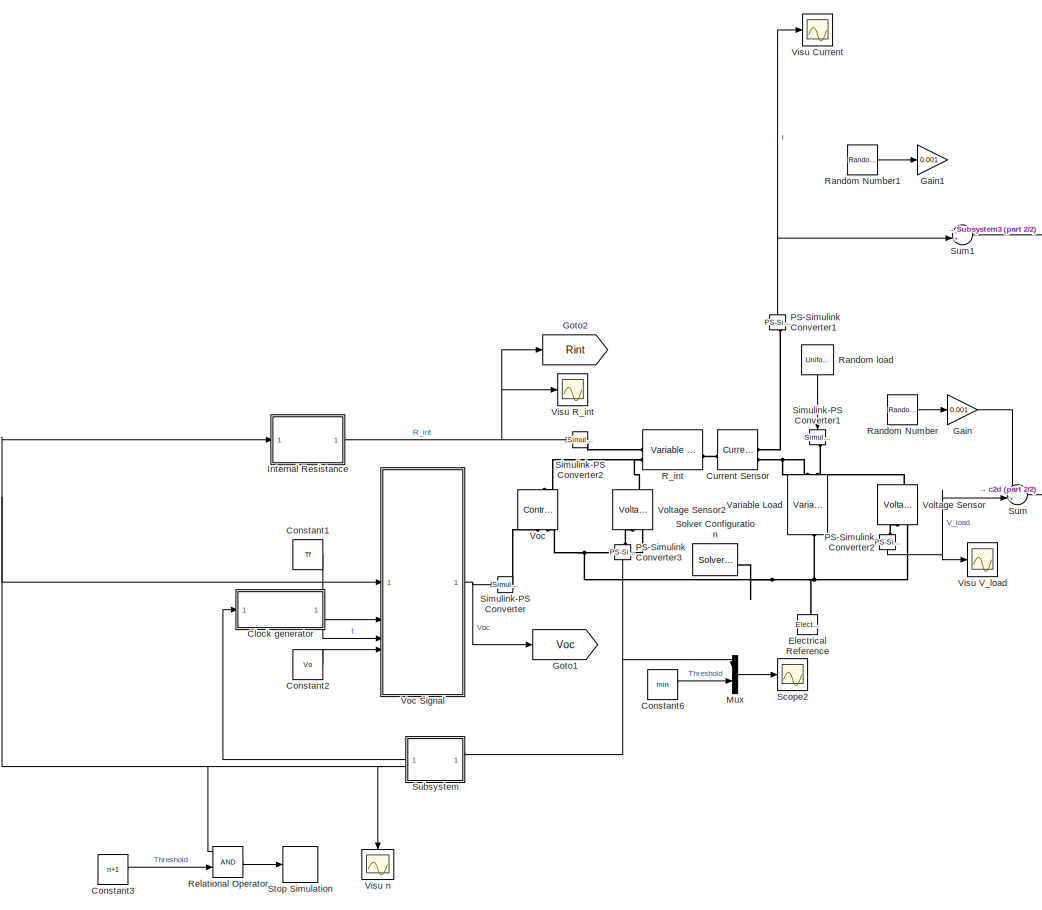
[diagram: root canvas - part 1/2, left side, full height]
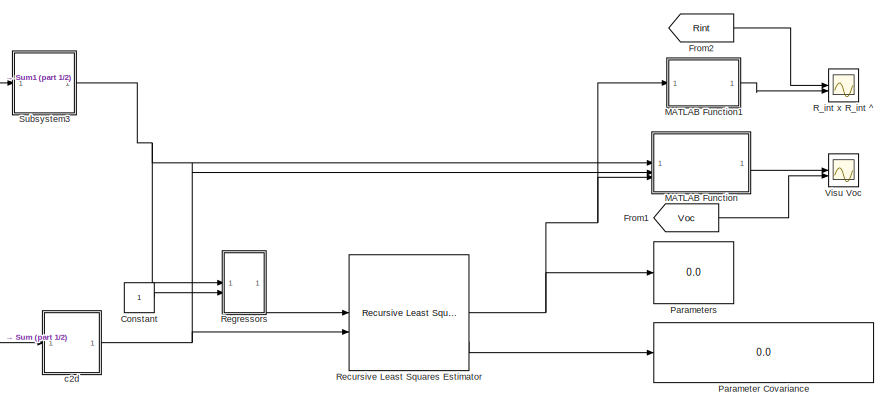
[diagram: root canvas - part 2/2, middle right region]
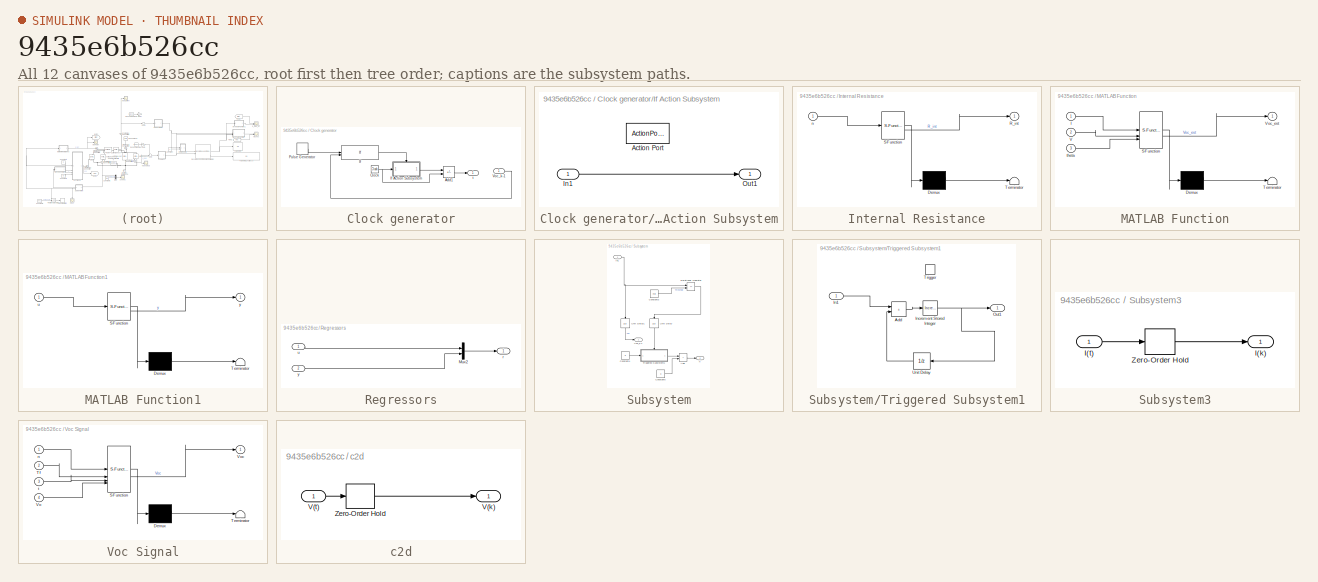
[diagram: thumbnail index - all 12 canvases of the model, root first then tree order]
MODEL slx_9435e6b526cc
KIND model
CONFIG AbsTol = auto
CONFIG EnableMultiTasking = off
CONFIG FixedStep = auto
CONFIG MaxStep = auto
CONFIG MinStep = auto
CONFIG RelTol = 1e-3
CONFIG SampleTimeConstraint = Unconstrained
CONFIG SolverName = VariableStepAuto
CONFIG StartTime = 0.0
CONFIG StopTime = Tf*n
BLOCK [SubSystem] Clock generator
BLOCK [Sum] Clock generator/Add1
  IconShape = rectangular
  Inputs = -+
BLOCK [Clock] Clock generator/Clock
BLOCK [If] Clock generator/If
  IfExpression = (u1 > Tf) | (u2 <= min)
  NumInputs = 2
  ShowElse = off
BLOCK [SubSystem] Clock generator/If Action Subsystem
  TreatAsAtomicUnit = on
BLOCK [ActionPort] Clock generator/If Action Subsystem/Action Port
  ActionPortLabel = if((u1 > Tf) | (u2 <= min))
BLOCK [Inport] Clock generator/If Action Subsystem/In1
BLOCK [Outport] Clock generator/If Action Subsystem/Out1
BLOCK [DiscretePulseGenerator] Clock generator/Pulse Generator
  Period = Tf
  PulseType = Time based
  PulseWidth = 5
BLOCK [Inport] Clock generator/Voc_k-1
BLOCK [Outport] Clock generator/t
BLOCK [Constant] Constant
  SampleTime = Te
BLOCK [Constant] Constant1
  Value = Tf
BLOCK [Constant] Constant2
  Value = Vo
BLOCK [Constant] Constant3
  Value = n+1
BLOCK [Constant] Constant6
  Value = min
BLOCK [Reference] Current Sensor  REF=fl_lib/Electrical/Electrical Sensors/Current Sensor
  SourceBlock = fl_lib/Electrical/Electrical Sensors/Current Sensor
  SourceType = Current Sensor
BLOCK [Reference] Electrical Reference  REF=fl_lib/Electrical/Electrical Elements/Electrical Reference
  LibrarySourceBlock = ee_lib/Connectors &\nReferences/Electrical Reference
  NameLocation = right
  SourceBlock = fl_lib/Electrical/Electrical Elements/Electrical Reference
  SourceType = Electrical Reference
BLOCK [From] From1
  GotoTag = Voc
BLOCK [From] From2
  GotoTag = Rint
BLOCK [Gain] Gain
  Gain = 0.001
BLOCK [Gain] Gain1
  Gain = 0.001
BLOCK [Goto] Goto1
  GotoTag = Voc
BLOCK [Goto] Goto2
  GotoTag = Rint
BLOCK [SubSystem] Internal Resistance
  ErrorFcn = Stateflow.Translate.translate
  LibrarySourceBlock = simulink/User-Defined\nFunctions/MATLAB Function
  PermitHierarchicalResolution = ExplicitOnly
  SFBlockType = MATLAB Function
  TreatAsAtomicUnit = on
BLOCK [Demux] Internal Resistance/ Demux 
  Outputs = 1
BLOCK [S-Function] Internal Resistance/ SFunction 
  EnableBusSupport = on
  FunctionName = sf_sfun
  PortCounts = [1 2]
  SFcnIsStateOwnerBlock = off
  SFunctionDeploymentMode = off
  Tag = Stateflow S-Function 2
BLOCK [Terminator] Internal Resistance/ Terminator 
BLOCK [Outport] Internal Resistance/R_int
BLOCK [Inport] Internal Resistance/n
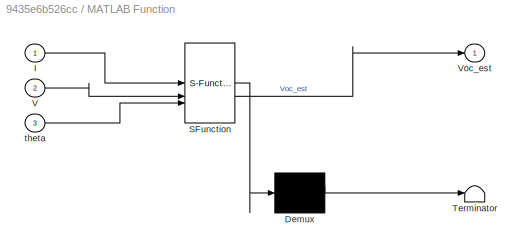
BLOCK [SubSystem] MATLAB Function
  ErrorFcn = Stateflow.Translate.translate
  LibrarySourceBlock = simulink/User-Defined\nFunctions/MATLAB Function
  PermitHierarchicalResolution = ExplicitOnly
  SFBlockType = MATLAB Function
  TreatAsAtomicUnit = on
BLOCK [Demux] MATLAB Function/ Demux 
  Outputs = 1
BLOCK [S-Function] MATLAB Function/ SFunction 
  EnableBusSupport = on
  FunctionName = sf_sfun
  PortCounts = [3 2]
  SFcnIsStateOwnerBlock = off
  SFunctionDeploymentMode = off
  Tag = Stateflow S-Function 3
BLOCK [Terminator] MATLAB Function/ Terminator 
BLOCK [Inport] MATLAB Function/I
BLOCK [Inport] MATLAB Function/V
  Port = 2
BLOCK [Outport] MATLAB Function/Voc_est
BLOCK [Inport] MATLAB Function/theta
  Port = 3
BLOCK [SubSystem] MATLAB Function1
  ErrorFcn = Stateflow.Translate.translate
  LibrarySourceBlock = simulink/User-Defined\nFunctions/MATLAB Function
  PermitHierarchicalResolution = ExplicitOnly
  SFBlockType = MATLAB Function
  TreatAsAtomicUnit = on
BLOCK [Demux] MATLAB Function1/ Demux 
  Outputs = 1
BLOCK [S-Function] MATLAB Function1/ SFunction 
  EnableBusSupport = on
  FunctionName = sf_sfun
  PortCounts = [1 2]
  SFcnIsStateOwnerBlock = off
  SFunctionDeploymentMode = off
  Tag = Stateflow S-Function 4
BLOCK [Terminator] MATLAB Function1/ Terminator 
BLOCK [Inport] MATLAB Function1/u
BLOCK [Outport] MATLAB Function1/y
BLOCK [Mux] Mux
  DisplayOption = bar
  Inputs = 2
BLOCK [Reference] PS-Simulink Converter1  REF=nesl_utility/PS-Simulink
Converter
  NameLocation = right
  SourceBlock = nesl_utility/PS-Simulink\nConverter
  SourceType = PS-Simulink\nConverter
BLOCK [Reference] PS-Simulink Converter2  REF=nesl_utility/PS-Simulink
Converter
  NameLocation = left
  SourceBlock = nesl_utility/PS-Simulink\nConverter
  SourceType = PS-Simulink\nConverter
BLOCK [Reference] PS-Simulink Converter3  REF=nesl_utility/PS-Simulink
Converter
  NameLocation = left
  SourceBlock = nesl_utility/PS-Simulink\nConverter
  SourceType = PS-Simulink\nConverter
BLOCK [Display] Parameter Covariance
  Decimation = 1
BLOCK [Display] Parameters
  Decimation = 1
BLOCK [Reference] R_int  REF=fl_lib/Electrical/Electrical Elements/Variable Resistor
  SourceBlock = fl_lib/Electrical/Electrical Elements/Variable Resistor
  SourceType = Variable Resistor
BLOCK [Scope] R_int x R_int ^
  Floating = off
  NumInputPorts = 2
  ScopeSpecificationString = Simulink.scopes.TimeScopeBlockCfg('CurrentConfiguration', extmgr.ConfigurationSet(extmgr.Configuration('Core','General UI',true),extmgr.Configuration('Core','Source UI',true),extmgr.Configuration('Sources','WiredSimulink',true,'DataLoggingVariableName','ScopeData2'),extmgr.Configuration('Visuals','Time Domain',true,'SerializedDisplays',{struct('MinYLimReal','-0.20811','MaxYLimReal','1.94419','YLab...<+1404ch>
BLOCK [RandomNumber] Random Number
  SampleTime = 0.1
BLOCK [RandomNumber] Random Number1
  SampleTime = 0.1
BLOCK [UniformRandomNumber] Random load
  Maximum = 5
  Minimum = 3
  NameLocation = right
  SampleTime = 0.1
  Seed = randi(100)
BLOCK [Reference] Recursive Least Squares Estimator  REF=ctrlSharedLib/Recursive Least Squares Estimator
  SourceBlock = ctrlSharedLib/Recursive Least Squares Estimator
  SourceType = idEstimatorsRLS
BLOCK [SubSystem] Regressors
BLOCK [Mux] Regressors/Mux2
  DisplayOption = bar
  Inputs = 2
BLOCK [Outport] Regressors/r
  VectorParamsAs1DForOutWhenUnconnected = off
BLOCK [Inport] Regressors/u
BLOCK [Inport] Regressors/y
  Port = 2
BLOCK [RelationalOperator] Relational Operator
  InputSameDT = off
  OutDataTypeStr = boolean
  RndMeth = Simplest
BLOCK [Scope] Scope2
  Floating = off
  NumInputPorts = 1
  ScopeSpecificationString = Simulink.scopes.TimeScopeBlockCfg('CurrentConfiguration', extmgr.ConfigurationSet(extmgr.Configuration('Core','General UI',true),extmgr.Configuration('Core','Source UI',true),extmgr.Configuration('Sources','WiredSimulink',true,'DataLoggingVariableName','ScopeData1'),extmgr.Configuration('Visuals','Time Domain',true,'SerializedDisplays',{struct('MinYLimReal','2.52499','MaxYLimReal','5.275','YLabelR...<+1456ch>
BLOCK [Reference] Simulink-PS Converter  REF=nesl_utility/Simulink-PS
Converter
  SourceBlock = nesl_utility/Simulink-PS\nConverter
  SourceType = Simulink-PS\nConverter
BLOCK [Reference] Simulink-PS Converter1  REF=nesl_utility/Simulink-PS
Converter
  NameLocation = left
  SourceBlock = nesl_utility/Simulink-PS\nConverter
  SourceType = Simulink-PS\nConverter
BLOCK [Reference] Simulink-PS Converter2  REF=nesl_utility/Simulink-PS
Converter
  SourceBlock = nesl_utility/Simulink-PS\nConverter
  SourceType = Simulink-PS\nConverter
BLOCK [Reference] Solver Configuration  REF=nesl_utility/Solver
Configuration
  SourceBlock = nesl_utility/Solver\nConfiguration
  SourceType = Solver\nConfiguration
BLOCK [Stop] Stop Simulation
BLOCK [SubSystem] Subsystem
  NameLocation = top
BLOCK [Sum] Subsystem/Add
  IconShape = rectangular
BLOCK [Constant] Subsystem/Constant3
  Value = min
BLOCK [Constant] Subsystem/Constant4
  Value = 0
BLOCK [Constant] Subsystem/Constant5
  Value = 0
BLOCK [Inport] Subsystem/In1
BLOCK [RelationalOperator] Subsystem/Relational Operator
  InputSameDT = off
  Operator = <=
  OutDataTypeStr = boolean
  RndMeth = Simplest
BLOCK [SubSystem] Subsystem/Triggered Subsystem1
  TreatAsAtomicUnit = on
BLOCK [Sum] Subsystem/Triggered Subsystem1/Add
  IconShape = rectangular
BLOCK [Inport] Subsystem/Triggered Subsystem1/In1
  LockScale = on
  OutDataTypeStr = double
BLOCK [Reference] Subsystem/Triggered Subsystem1/Increment Stored Integer  REF=simulink/Additional Math
& Discrete/Additional Math:
Increment - Decrement/Increment
Stored Integer
  SourceBlock = simulink/Additional Math\n& Discrete/Additional Math:\nIncrement - Decrement/Increment\nStored Integer
  SourceType = Stored Integer Value Increment
BLOCK [Outport] Subsystem/Triggered Subsystem1/Out1
BLOCK [TriggerPort] Subsystem/Triggered Subsystem1/Trigger
  StatesWhenEnabling = held
  VariantControl = (inherit)
BLOCK [UnitDelay] Subsystem/Triggered Subsystem1/Unit Delay
  HasFrameUpgradeWarning = on
  NameLocation = top
  SampleTime = -1
BLOCK [UnitDelay] Subsystem/Unit Delay
  HasFrameUpgradeWarning = on
  NameLocation = left
  SampleTime = -1
BLOCK [UnitDelay] Subsystem/Unit Delay1
  HasFrameUpgradeWarning = on
  NameLocation = left
  SampleTime = -1
BLOCK [Outport] Subsystem/Voc_k-1
BLOCK [Outport] Subsystem/n
  Port = 2
BLOCK [SubSystem] Subsystem3
BLOCK [Outport] Subsystem3/I(k)
BLOCK [Inport] Subsystem3/I(t)
BLOCK [ZeroOrderHold] Subsystem3/Zero-Order Hold
  SampleTime = Te
BLOCK [Sum] Sum
  Inputs = ++|
BLOCK [Sum] Sum1
  Inputs = ++|
BLOCK [Reference] Variable Load  REF=fl_lib/Electrical/Electrical Elements/Variable Resistor
  NameLocation = left
  SourceBlock = fl_lib/Electrical/Electrical Elements/Variable Resistor
  SourceType = Variable Resistor
BLOCK [Scope] Visu Current
  Floating = off
  NumInputPorts = 1
  ScopeSpecificationString = Simulink.scopes.TimeScopeBlockCfg('CurrentConfiguration', extmgr.ConfigurationSet(extmgr.Configuration('Core','General UI',true),extmgr.Configuration('Core','Source UI',true),extmgr.Configuration('Sources','WiredSimulink',true),extmgr.Configuration('Visuals','Time Domain',true,'SerializedDisplays',{struct('MinYLimReal','0.42025','MaxYLimReal','1.7621','YLabelReal','','MinYLimMag','0.42025','MaxYLi...<+1315ch>
BLOCK [Scope] Visu R_int
  Floating = off
  NumInputPorts = 1
  ScopeSpecificationString = Simulink.scopes.TimeScopeBlockCfg('CurrentConfiguration', extmgr.ConfigurationSet(extmgr.Configuration('Core','General UI',true),extmgr.Configuration('Core','Source UI',true),extmgr.Configuration('Sources','WiredSimulink',true,'DataLoggingVariableName','ScopeData1'),extmgr.Configuration('Visuals','Time Domain',true,'SerializedDisplays',{struct('MinYLimReal','0.05998','MaxYLimReal','0.06019','YLabe...<+1430ch>
BLOCK [Scope] Visu V_load
  Floating = off
  NameLocation = right
  NumInputPorts = 1
  ScopeSpecificationString = Simulink.scopes.TimeScopeBlockCfg('CurrentConfiguration', extmgr.ConfigurationSet(extmgr.Configuration('Core','General UI',true),extmgr.Configuration('Core','Source UI',true),extmgr.Configuration('Sources','WiredSimulink',true,'DataLoggingVariableName','simu_data','DataLogging',true,'DataLoggingSaveFormat','StructureWithTime'),extmgr.Configuration('Visuals','Time Domain',true,'SerializedDisplays',...<+1821ch>
BLOCK [Scope] Visu Voc
  Floating = off
  NumInputPorts = 2
  ScopeSpecificationString = Simulink.scopes.TimeScopeBlockCfg('CurrentConfiguration', extmgr.ConfigurationSet(extmgr.Configuration('Core','General UI',true),extmgr.Configuration('Core','Source UI',true),extmgr.Configuration('Sources','WiredSimulink',true,'DataLoggingVariableName','ScopeData3'),extmgr.Configuration('Visuals','Time Domain',true,'SerializedDisplays',{struct('MinYLimReal','1.4574','MaxYLimReal','18.87591','YLabe...<+1453ch>
BLOCK [Scope] Visu n
  Floating = off
  NameLocation = left
  NumInputPorts = 1
  ScopeSpecificationString = Simulink.scopes.TimeScopeBlockCfg('CurrentConfiguration', extmgr.ConfigurationSet(extmgr.Configuration('Core','General UI',true),extmgr.Configuration('Core','Source UI',true),extmgr.Configuration('Sources','WiredSimulink',true,'DataLoggingVariableName','ScopeData2'),extmgr.Configuration('Visuals','Time Domain',true,'SerializedDisplays',{struct('MinYLimReal','-25.00000','MaxYLimReal','225.00000','Y...<+1380ch>
BLOCK [Reference] Voc  REF=fl_lib/Electrical/Electrical Sources/Controlled Voltage
Source
  NameLocation = right
  SourceBlock = fl_lib/Electrical/Electrical Sources/Controlled Voltage\nSource
  SourceType = Controlled Voltage\nSource
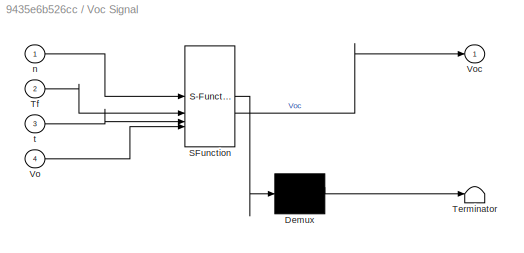
BLOCK [SubSystem] Voc Signal
  ErrorFcn = Stateflow.Translate.translate
  LibrarySourceBlock = simulink/User-Defined\nFunctions/MATLAB Function
  PermitHierarchicalResolution = ExplicitOnly
  SFBlockType = MATLAB Function
  TreatAsAtomicUnit = on
BLOCK [Demux] Voc Signal/ Demux 
  Outputs = 1
BLOCK [S-Function] Voc Signal/ SFunction 
  EnableBusSupport = on
  FunctionName = sf_sfun
  PortCounts = [4 2]
  SFcnIsStateOwnerBlock = off
  SFunctionDeploymentMode = off
  Tag = Stateflow S-Function 1
BLOCK [Terminator] Voc Signal/ Terminator 
BLOCK [Inport] Voc Signal/Tf
  Port = 2
BLOCK [Inport] Voc Signal/Vo
  Port = 4
BLOCK [Outport] Voc Signal/Voc
BLOCK [Inport] Voc Signal/n
BLOCK [Inport] Voc Signal/t
  Port = 3
BLOCK [Reference] Voltage Sensor  REF=fl_lib/Electrical/Electrical Sensors/Voltage Sensor
  NameLocation = right
  SourceBlock = fl_lib/Electrical/Electrical Sensors/Voltage Sensor
  SourceType = Voltage Sensor
BLOCK [Reference] Voltage Sensor2  REF=fl_lib/Electrical/Electrical Sensors/Voltage Sensor
  NameLocation = right
  SourceBlock = fl_lib/Electrical/Electrical Sensors/Voltage Sensor
  SourceType = Voltage Sensor
BLOCK [SubSystem] c2d
BLOCK [Outport] c2d/V(k)
BLOCK [Inport] c2d/V(t)
BLOCK [ZeroOrderHold] c2d/Zero-Order Hold
  SampleTime = Te
LINE Clock generator/Add1:1 -> Clock generator/t:1
NET Clock generator/Clock:1 -> Clock generator/Add1:2, Clock generator/If Action Subsystem:1
LINE Clock generator/If Action Subsystem/In1:1 -> Clock generator/If Action Subsystem/Out1:1
LINE Clock generator/If Action Subsystem:1 -> Clock generator/Add1:1
LINE Clock generator/If:1 -> Clock generator/If Action Subsystem:ifaction
LINE Clock generator/Pulse Generator:1 -> Clock generator/If:1
LINE Clock generator/Voc_k-1:1 -> Clock generator/If:2
LINE Clock generator:1 -> Voc Signal:3
LINE Constant1:1 -> Voc Signal:2
LINE Constant2:1 -> Voc Signal:4
LINE Constant3:1 -> Relational Operator:2
LINE Constant6:1 -> Mux:2
LINE Constant:1 -> Regressors:2
LINE From1:1 -> Visu Voc:2
LINE From2:1 -> R_int x R_int ^:1
LINE Gain:1 -> Sum:1
NET Internal Resistance:1 -> Goto2:1, Simulink-PS Converter2:1, Visu R_int:1
LINE MATLAB Function1:1 -> R_int x R_int ^:2
LINE MATLAB Function:1 -> Visu Voc:1
LINE Mux:1 -> Scope2:1
NET PS-Simulink Converter1:1 -> Sum1:2, Visu Current:1
NET PS-Simulink Converter2:1 -> Sum:2, Visu V_load:1
NET PS-Simulink Converter3:1 -> Mux:1, Subsystem:1
LINE Random Number1:1 -> Gain1:1
LINE Random Number:1 -> Gain:1
LINE Random load:1 -> Simulink-PS Converter1:1
NET Recursive Least Squares Estimator:1 -> MATLAB Function1:1, MATLAB Function:3, Parameters:1
LINE Recursive Least Squares Estimator:3 -> Parameter Covariance:1
LINE Regressors/Mux2:1 -> Regressors/r:1
LINE Regressors/u:1 -> Regressors/Mux2:1
LINE Regressors/y:1 -> Regressors/Mux2:2
LINE Regressors:1 -> Recursive Least Squares Estimator:1
LINE Relational Operator:1 -> Stop Simulation:1
LINE Subsystem/Add:1 -> Subsystem/n:1
LINE Subsystem/Constant3:1 -> Subsystem/Relational Operator:2
LINE Subsystem/Constant4:1 -> Subsystem/Triggered Subsystem1:1
LINE Subsystem/Constant5:1 -> Subsystem/Add:2
NET Subsystem/In1:1 -> Subsystem/Relational Operator:1, Subsystem/Unit Delay1:1
LINE Subsystem/Relational Operator:1 -> Subsystem/Unit Delay:1
LINE Subsystem/Triggered Subsystem1/Add:1 -> Subsystem/Triggered Subsystem1/Increment Stored Integer:1
LINE Subsystem/Triggered Subsystem1/In1:1 -> Subsystem/Triggered Subsystem1/Add:1
NET Subsystem/Triggered Subsystem1/Increment Stored Integer:1 -> Subsystem/Triggered Subsystem1/Out1:1, Subsystem/Triggered Subsystem1/Unit Delay:1
LINE Subsystem/Triggered Subsystem1/Unit Delay:1 -> Subsystem/Triggered Subsystem1/Add:2
LINE Subsystem/Triggered Subsystem1:1 -> Subsystem/Add:1
LINE Subsystem/Unit Delay1:1 -> Subsystem/Voc_k-1:1
LINE Subsystem/Unit Delay:1 -> Subsystem/Triggered Subsystem1:trigger
LINE Subsystem3/I(t):1 -> Subsystem3/Zero-Order Hold:1
LINE Subsystem3/Zero-Order Hold:1 -> Subsystem3/I(k):1
NET Subsystem3:1 -> MATLAB Function:1, Regressors:1
LINE Subsystem:1 -> Clock generator:1
NET Subsystem:2 -> Internal Resistance:1, Relational Operator:1, Visu n:1, Voc Signal:1
LINE Sum1:1 -> Subsystem3:1
LINE Sum:1 -> c2d:1
NET Voc Signal:1 -> Goto1:1, Simulink-PS Converter:1
LINE c2d/V(t):1 -> c2d/Zero-Order Hold:1
LINE c2d/Zero-Order Hold:1 -> c2d/V(k):1
NET c2d:1 -> MATLAB Function:2, Recursive Least Squares Estimator:2
PLINE Current Sensor:LConn1 -- R_int:RConn1
PLINE Current Sensor:RConn1 -- PS-Simulink Converter1:LConn1
PNET net1: Current Sensor:RConn2 -- Variable Load:LConn2 -- Voltage Sensor:LConn1
PNET net2: Electrical Reference:LConn1 -- Solver Configuration:RConn1 -- Variable Load:RConn1 -- Voc:RConn2 -- Voltage Sensor2:RConn2 -- Voltage Sensor:RConn2
PLINE PS-Simulink Converter2:LConn1 -- Voltage Sensor:RConn1
PLINE PS-Simulink Converter3:LConn1 -- Voltage Sensor2:RConn1
PLINE R_int:LConn1 -- Simulink-PS Converter2:RConn1
PNET net3: R_int:LConn2 -- Voc:LConn1 -- Voltage Sensor2:LConn1
PLINE Simulink-PS Converter1:RConn1 -- Variable Load:LConn1
PLINE Simulink-PS Converter:RConn1 -- Voc:RConn1
note: NET lines group one-source signal fan-out (src -> all destinations, sorted); 1:1 wires keep LINE; PNET lines group multi-terminal physical nets as a canonical sorted terminal list (undirected conserving connections); 2-terminal nets keep the pairwise PLINE form
CHART Voc
Signal states=1 transitions=1
  STATE_LABEL 'eML_blk_kernel()'
  STATE_LABEL 'SCRIPT:\nfunction Voc = fcn(n, Tf, t, Vo)\n    \n    b = (tan(1.5)/1.8) - ((tan(-((3503.67-11.17*n)/(Tf-9.87*n)) + 1.5))/1.8);\n    a = Vo  - tan(1.5)/b;\n    c = pi/(Tf-9.87*n);\n\n    Voc = a + tan(-t*c + 1.5)/b;\n\nend\n\n'
CHART Internal Resistance states=1 transitions=1
  STATE_LABEL 'eML_blk_kernel()'
  STATE_LABEL 'SCRIPT:\nfunction R_int = fcn(n)\n    R_int = 0.06 + 8.4375E-5*n;\nend'
CHART MATLAB Function states=1 transitions=1
  STATE_LABEL 'eML_blk_kernel()'
  STATE_LABEL 'SCRIPT:\nfunction Voc_est = fcn(I,V,theta)\n\nVoc_est = theta(1)*I + theta(2)*V;\n'
CHART MATLAB Function1 states=1 transitions=1
  STATE_LABEL 'eML_blk_kernel()'
  STATE_LABEL 'SCRIPT:\nfunction y = fcn(u)\n\ny = u(1);\n'
CHART  states=0 transitions=0
CHART  states=0 transitions=0
CHART  states=0 transitions=0
CHART  states=0 transitions=0
